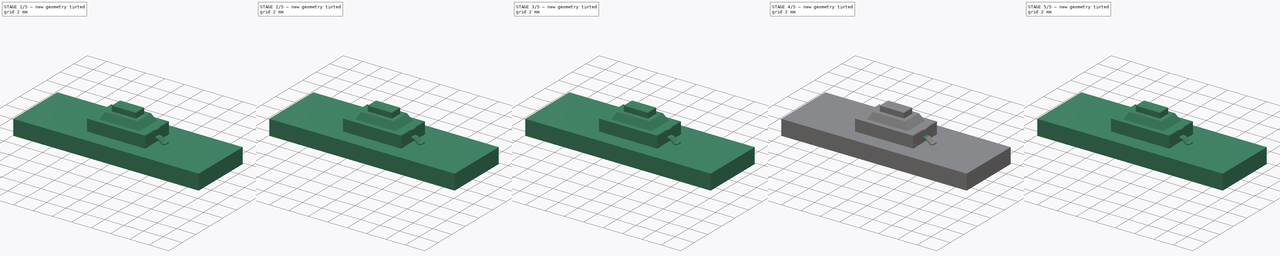
[diagram: build sequence overview — one tinted view per stage of 5, left to right]
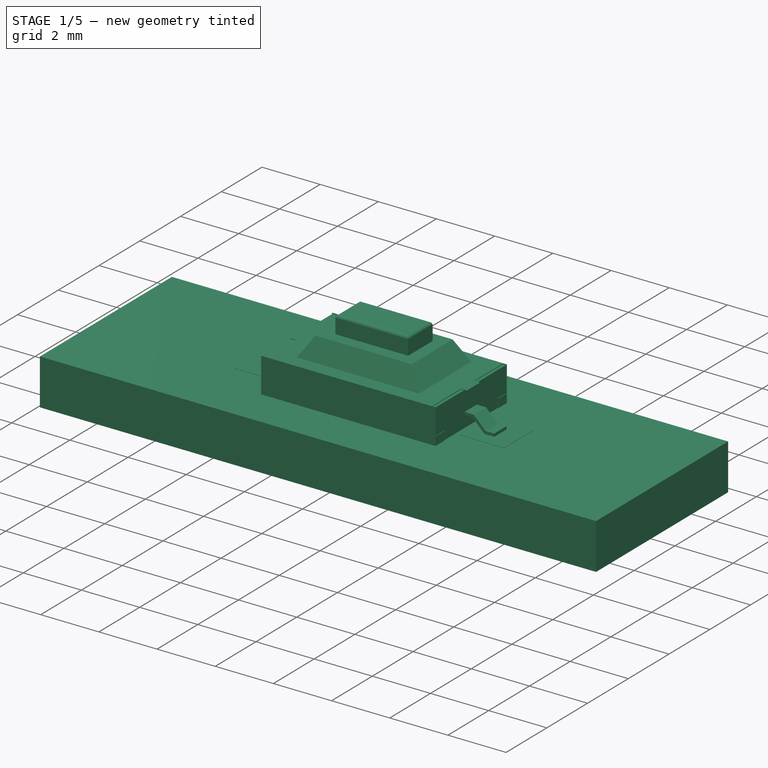
[diagram: stage 1 of 5 — iso view after this stage's code; geometry added in this stage tinted green]
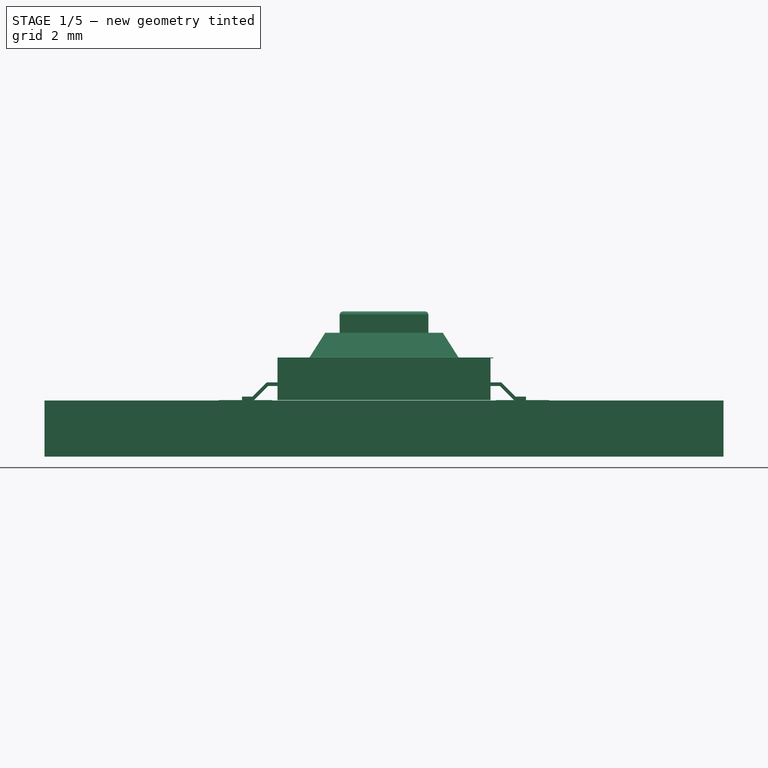
[diagram: stage 1 of 5 — front view after this stage's code; geometry added in this stage tinted green]
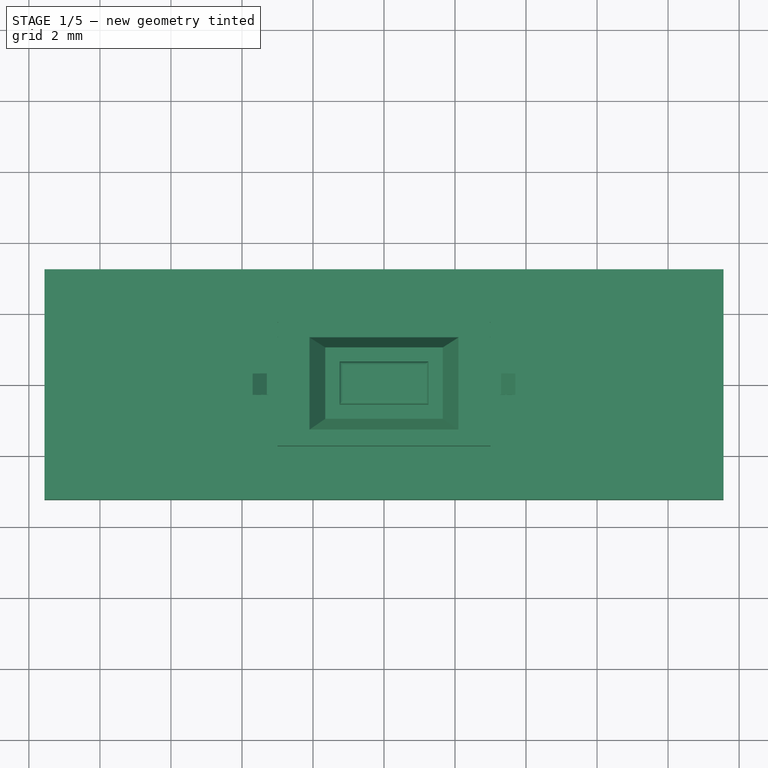
[diagram: stage 1 of 5 — top view after this stage's code; geometry added in this stage tinted green]
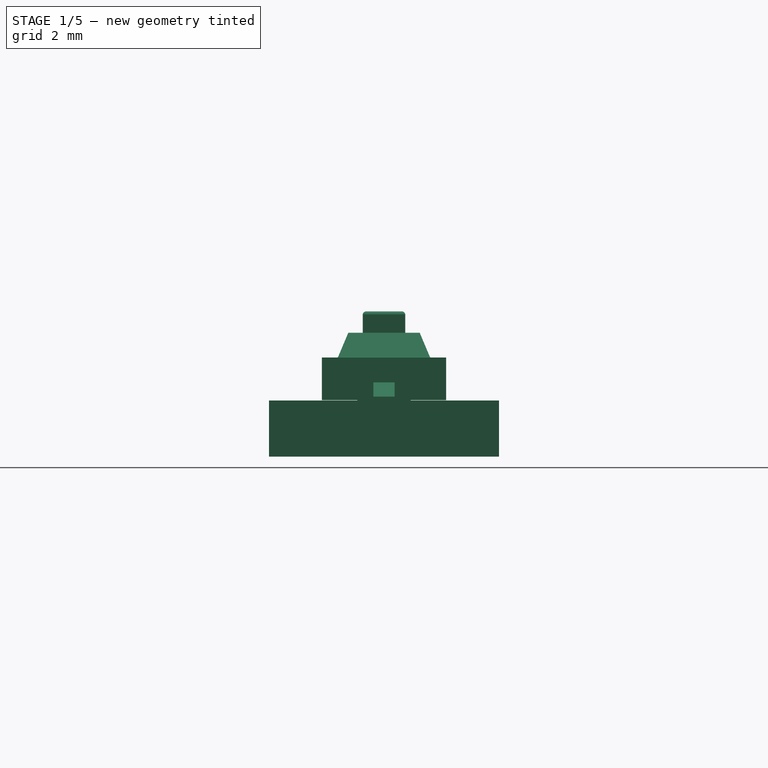
[diagram: stage 1 of 5 — right view after this stage's code; geometry added in this stage tinted green]
FCSTD DOCUMENT  (FreeCAD 0.18R13652 (Git))
Label: SW_SPST_CK_RS282G05A3
License: CreativeCommons Attribution-ShareAlike
LicenseURL: http://creativecommons.org/licenses/by-sa/4.0/
objects: Sketcher::SketchObject×9, PartDesign::Pad×7, Part::Feature×7, App::DocumentObjectGroup×6, Part::FeaturePython×5, Part::Part2DObjectPython×4, Part::MultiFuse×3, PartDesign::Fillet×3, PartDesign::Pocket×2, Part::Fillet×1, PartDesign::Mirrored×1, Part::Wedge×1, Part::Thickness×1
note: 53 computed .brp shape members not serialized (recipe doc carries the construction recipe); baked Part::Feature solids carry a one-line shape summary decoded from their .brp

FEATURE [Part::FeaturePython] FCrtYd_lines  label="FCrtYd"  # a2plus imported part (geometry in sourceFile) (typed FeaturePython)
  fixedPosition = true
FEATURE [Part::FeaturePython] FFab_lines  label="FFab"  # a2plus imported part (geometry in sourceFile) (typed FeaturePython)
  fixedPosition = true
FEATURE [Part::FeaturePython] Filk_lines  label="FrontSilk"  # a2plus imported part (geometry in sourceFile) (typed FeaturePython)
  fixedPosition = true
FEATURE [Part::FeaturePython] TopPads  # a2plus imported part (geometry in sourceFile) (typed FeaturePython)
  fixedPosition = true
FEATURE [Part::FeaturePython] newPCB  label="Pcb"  # a2plus imported part (geometry in sourceFile) (typed FeaturePython)
  fixedPosition = true
FEATURE [App::DocumentObjectGroup] Buttons_Switches_SMD_SW_SPST_RS_282G05A3_SM_fp
  Group = -> [FCrtYd_lines,FFab_lines,Filk_lines,TopPads,newPCB]
FEATURE [Part::Feature] Fillet006  label="PushButton_001"
  shape: bbox 2.5 x 1.2 x 1.32 mm, 10 faces (baked)
FEATURE [Part::Feature] Pocket002  label="Relleno001_001"
  shape: bbox 5.96 x 3.46 x 1.18 mm, 26 faces (baked)
FEATURE [Part::Feature] Fusion_solid  label="Fussion (Solid)"
  shape: bbox 6.078 x 3.502 x 1.902 mm, 53 faces (baked)
FEATURE [App::DocumentObjectGroup] Grupo001  label="carcaza"
  Group = -> [Pad001,Grupo002,Fusion,Fusion_solid]
FEATURE [App::DocumentObjectGroup] Grupo  label="make"
  Group = -> [Grupo001,Grupo003,Grupo004,Fillet,Fillet005,Pocket]
FEATURE [PartDesign::Fillet] Fillet005002  label="Carcaza"
  Base = -> Fusion_solid [Edge29,Edge30,Edge28,Edge31]
  Radius = 0.03
FEATURE [Part::Feature] Mirrored001  label="PIN_x2_001"
  Placement = pos=(0,0,0) rot=(1,0,0;1.5708rad)
  shape: bbox 8 x 0.6 x 0.5 mm, 14 faces (baked)
FEATURE [Part::MultiFuse] Fusion002  label="SW_SPST_CK_RS282G05A3_"
  Refine = true
  Shapes = -> [Fillet005002,Fillet006,Pocket002,Mirrored001]
FEATURE [Part::Feature] Fusion002001  label="SW_SPST_CK_RS282G05A3"
  shape: bbox 8.002 x 3.502 x 2.502 mm, 109 faces (baked)
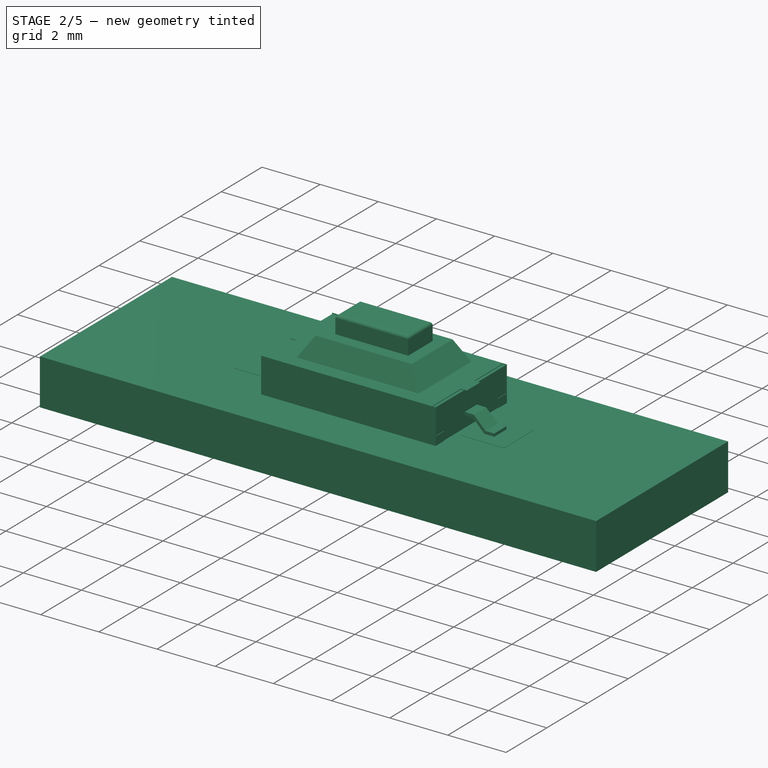
[diagram: stage 2 of 5 — iso view after this stage's code; geometry added in this stage tinted green]
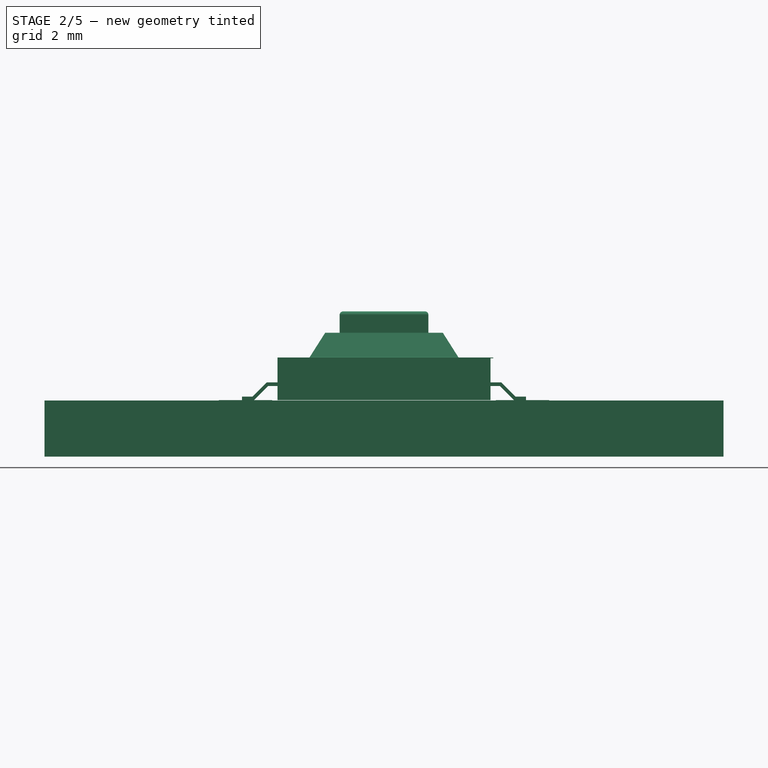
[diagram: stage 2 of 5 — front view after this stage's code; geometry added in this stage tinted green]
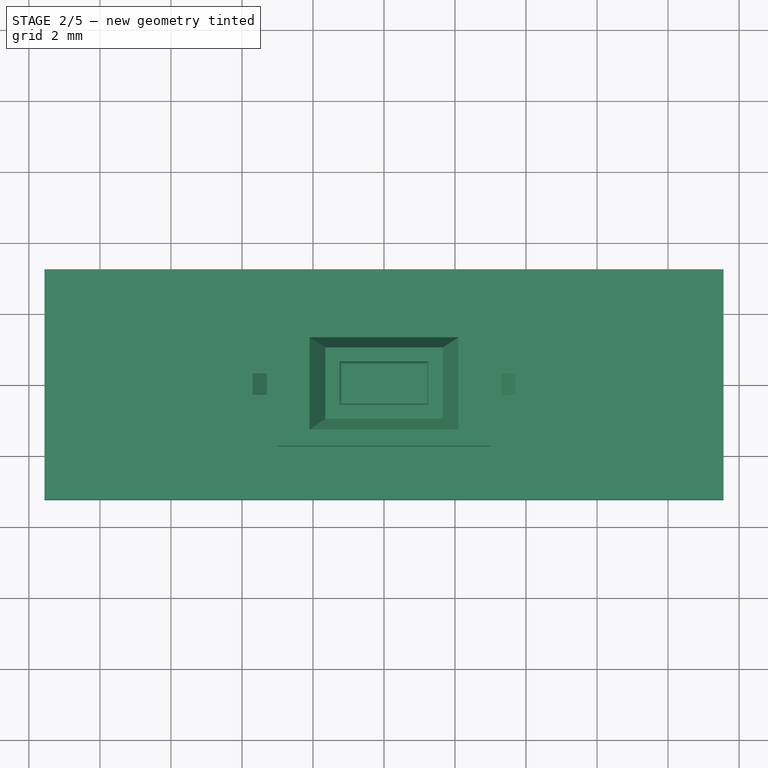
[diagram: stage 2 of 5 — top view after this stage's code; geometry added in this stage tinted green]
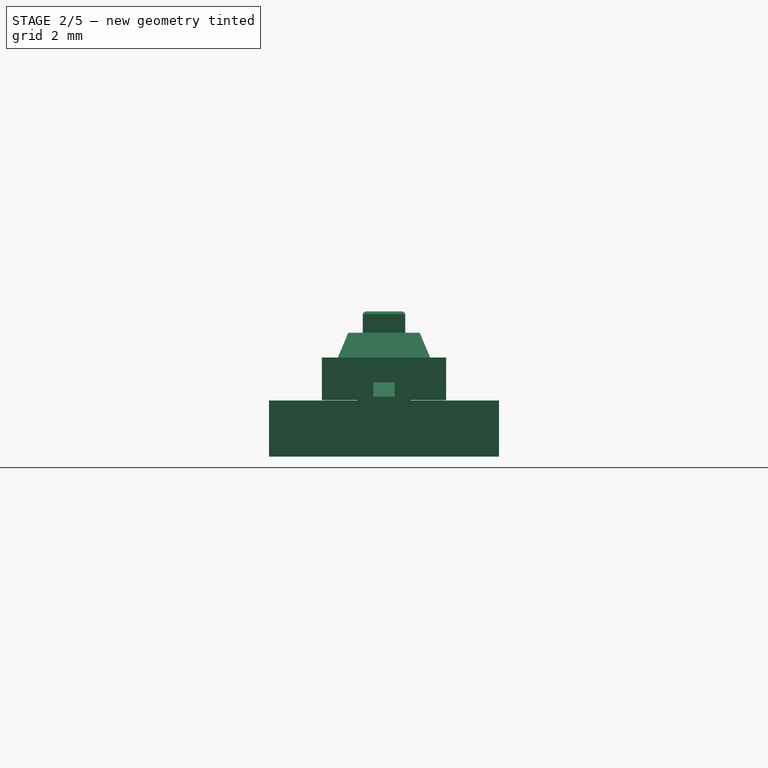
[diagram: stage 2 of 5 — right view after this stage's code; geometry added in this stage tinted green]
FEATURE [Sketcher::SketchObject] Sketch  label="1.Sketch"
  MapMode = 5
  sketch-geometry (10):
    g0: LineSegment StartX=-3 StartY=1.75 StartZ=0 EndX=3 EndY=1.75 EndZ=0
    g1: LineSegment [constr] StartX=3 StartY=1.75 StartZ=0 EndX=3 EndY=-1.75 EndZ=0
    g2: LineSegment StartX=3 StartY=-1.75 StartZ=0 EndX=-3 EndY=-1.75 EndZ=0
    g3: LineSegment [constr] StartX=-3 StartY=-1.75 StartZ=0 EndX=-3 EndY=1.75 EndZ=0
    g4: LineSegment StartX=-3 StartY=1.75 StartZ=0 EndX=-3 EndY=1.73 EndZ=0
    g5: LineSegment StartX=-3 StartY=1.73 StartZ=0 EndX=3 EndY=1.73 EndZ=0
    g6: LineSegment StartX=3 StartY=1.73 StartZ=0 EndX=3 EndY=1.75 EndZ=0
    g7: LineSegment StartX=-3 StartY=-1.75 StartZ=0 EndX=-3 EndY=-1.73 EndZ=0
    g8: LineSegment StartX=-3 StartY=-1.73 StartZ=0 EndX=3 EndY=-1.73 EndZ=0
    g9: LineSegment StartX=3 StartY=-1.73 StartZ=0 EndX=3 EndY=-1.75 EndZ=0
  constraints (27):
    c: Coincident(g0,g1)
    c: Coincident(g1,g2)
    c: Coincident(g2,g3)
    c: Coincident(g3,g0)
    c: Horizontal(g0)
    c: Horizontal(g2)
    c: Vertical(g1)
    c: Vertical(g3)
    c: Symmetric(g0,g1,g-1)
    c: DistanceX(g2,g2) = 6
    c: DistanceY(g1,g1) = 3.5
    c: Coincident(g0,g4)
    c: PointOnObject(g4,g3)
    c: Coincident(g4,g5)
    c: PointOnObject(g5,g1)
    c: Horizontal(g5)
    c: Coincident(g5,g6)
    c: Coincident(g6,g0)
    c: DistanceY(g4,g4) = 0.02
    c: Coincident(g2,g7)
    c: PointOnObject(g7,g3)
    c: Coincident(g7,g8)
    c: PointOnObject(g8,g1)
    c: Horizontal(g8)
    c: Coincident(g8,g9)
    c: Coincident(g9,g1)
    c: Equal(g4,g7)
FEATURE [PartDesign::Pad] Pad001  label="1.Pad001"
  Length = 1.2
  Length2 = 100
  Profile = -> Sketch
  Refine = true
  Type = 0
FEATURE [Part::Part2DObjectPython] DWire  label="5.DWire"  # Draft 2D object (typed FeaturePython)
  ChamferSize = 0
  Closed = true
  End = (2.1,-1.3,1.2)
  FilletRadius = 0
  Length = 9.27074
  MakeFace = true
  MapMode = 5
  Points = (4) [(-2.1,-1.3,1.2),(-1.655,-1.005,1.9),(1.655,-1.005,1.9),(2.1,-1.3,1.2)]
  Start = (-2.1,-1.3,1.2)
  Subdivisions = 0
FEATURE [Part::Part2DObjectPython] DWire001  label="5.DWire001"  # Draft 2D object (typed FeaturePython)
  ChamferSize = 0
  Closed = true
  End = (-2.1,0.0772879,1.37815)
  FilletRadius = 0
  Length = 6.37074
  MakeFace = true
  MapMode = 5
  Placement = pos=(0,-1.53338,0.646211) rot=(0,0.833172,0.553014;3.14159rad)
  Points = (4) [(2.1,-1.3,1.2),(1.655,-1.005,1.9),(1.655,1.005,1.9),(2.1,1.3,1.2)]
  Start = (-2.1,-0.932425,-1.01778)
  Subdivisions = 0
  Support = -> [DWire]
FEATURE [Part::Part2DObjectPython] DWire002  label="5.DWire002"  # Draft 2D object (typed FeaturePython)
  ChamferSize = 0
  Closed = true
  End = (-2.1,1.3,1.2)
  FilletRadius = 0
  Length = 9.27074
  MakeFace = true
  MapMode = 5
  Points = (4) [(2.1,1.3,1.2),(1.655,1.005,1.9),(-1.655,1.005,1.9),(-2.1,1.3,1.2)]
  Start = (2.1,1.3,1.2)
  Subdivisions = 0
FEATURE [Part::Part2DObjectPython] DWire003  label="5.DWire003"  # Draft 2D object (typed FeaturePython)
  ChamferSize = 0
  Closed = true
  End = (-2.1,-1.3,1.2)
  FilletRadius = 0
  Length = 6.37074
  MakeFace = true
  MapMode = 5
  Points = (4) [(-2.1,1.3,1.2),(-1.655,1.005,1.9),(-1.655,-1.005,1.9),(-2.1,-1.3,1.2)]
  Start = (-2.1,1.3,1.2)
  Subdivisions = 0
FEATURE [Part::Feature] Shell  label="5.Shell"
  shape: bbox 4.2 x 2.6 x 0.7 mm, 4 faces, 0 solids (baked)
FEATURE [Part::Feature] Solid  label="5.Solid"
  shape: bbox 4.2 x 2.6 x 0.7 mm, 4 faces (baked)
FEATURE [Part::Wedge] Wedge  label="5.Cuña"
  AttacherType = Attacher::AttachEngine3D
  Placement = pos=(-2.1,1.3,1.2) rot=(1,0,0;1.5708rad)
  X2max = 3.755
  X2min = 0.445
  Xmax = 4.2
  Xmin = 0
  Ymax = 0.7
  Ymin = 0
  Z2max = 2.305
  Z2min = 0.295
  Zmax = 2.6
  Zmin = 0
FEATURE [Part::Thickness] Thickness  label="5.Thickness"
  Faces = -> Wedge [Face3]
  Intersection = false
  Join = 2
  Mode = 0
  SelfIntersection = false
  Value = -0.02
FEATURE [App::DocumentObjectGroup] Grupo002  label="5.pad"
  Group = -> [DWire,DWire001,DWire002,DWire003,Shell,Solid,Pad004,Thickness]
FEATURE [Sketcher::SketchObject] Sketch010  label="5.Sketch010"
  MapMode = 5
  Placement = pos=(0,0,1.9) rot=(0,0,1;0rad)
  Support = -> [Thickness]
  sketch-geometry (4):
    g0: LineSegment StartX=-1.255 StartY=0.605 StartZ=0 EndX=1.255 EndY=0.605 EndZ=0
    g1: LineSegment StartX=1.255 StartY=0.605 StartZ=0 EndX=1.255 EndY=-0.605 EndZ=0
    g2: LineSegment StartX=1.255 StartY=-0.605 StartZ=0 EndX=-1.255 EndY=-0.605 EndZ=0
    g3: LineSegment StartX=-1.255 StartY=-0.605 StartZ=0 EndX=-1.255 EndY=0.605 EndZ=0
  constraints (11):
    c: Coincident(g0,g1)
    c: Coincident(g1,g2)
    c: Coincident(g2,g3)
    c: Coincident(g3,g0)
    c: Horizontal(g0)
    c: Horizontal(g2)
    c: Vertical(g1)
    c: Vertical(g3)
    c: Symmetric(g0,g1,g-1)
    c: DistanceX(g2,g2) = 2.51
    c: DistanceY(g3,g3) = 1.21
FEATURE [PartDesign::Pocket] Pocket001  label="5.Pocket001"
  Length = 5
  Length2 = 100
  Profile = -> Sketch010
  Refine = true
  Type = 2
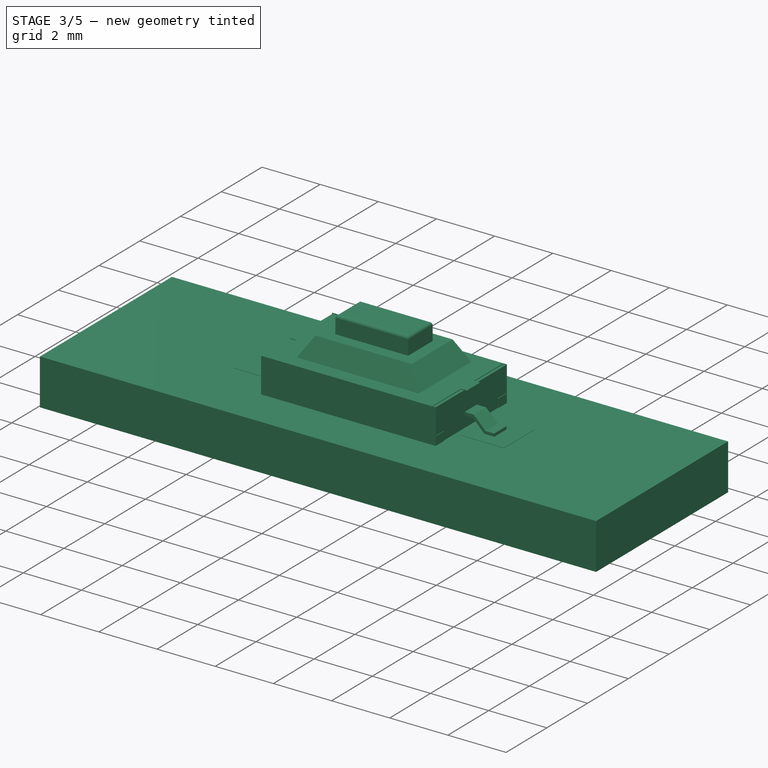
[diagram: stage 3 of 5 — iso view after this stage's code; geometry added in this stage tinted green]
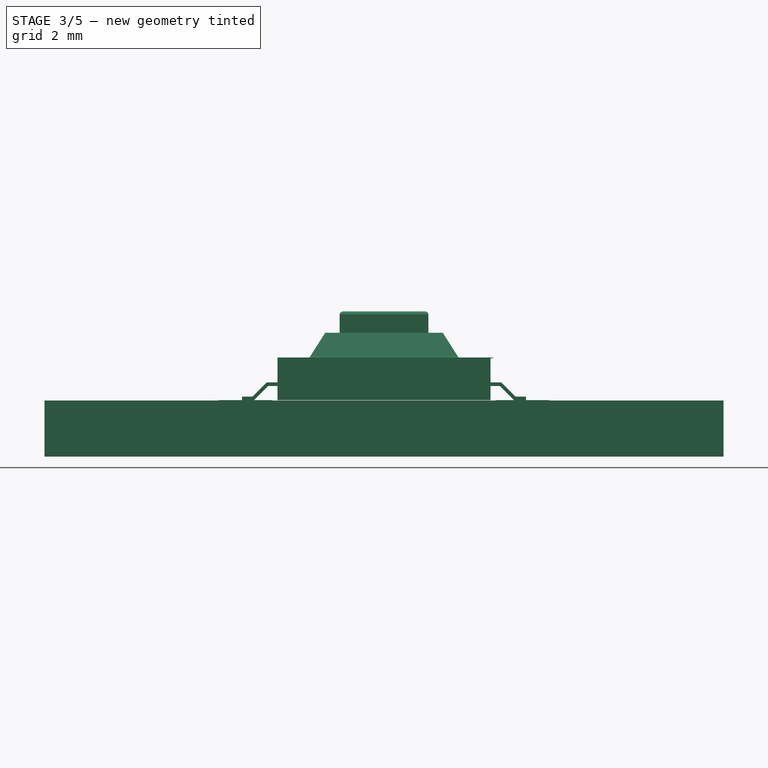
[diagram: stage 3 of 5 — front view after this stage's code; geometry added in this stage tinted green]
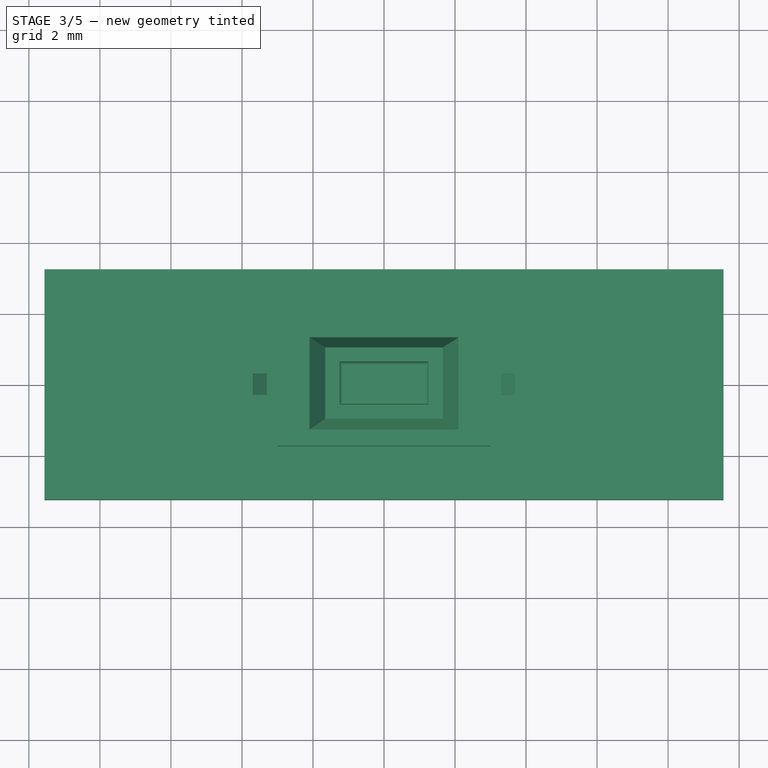
[diagram: stage 3 of 5 — top view after this stage's code; geometry added in this stage tinted green]
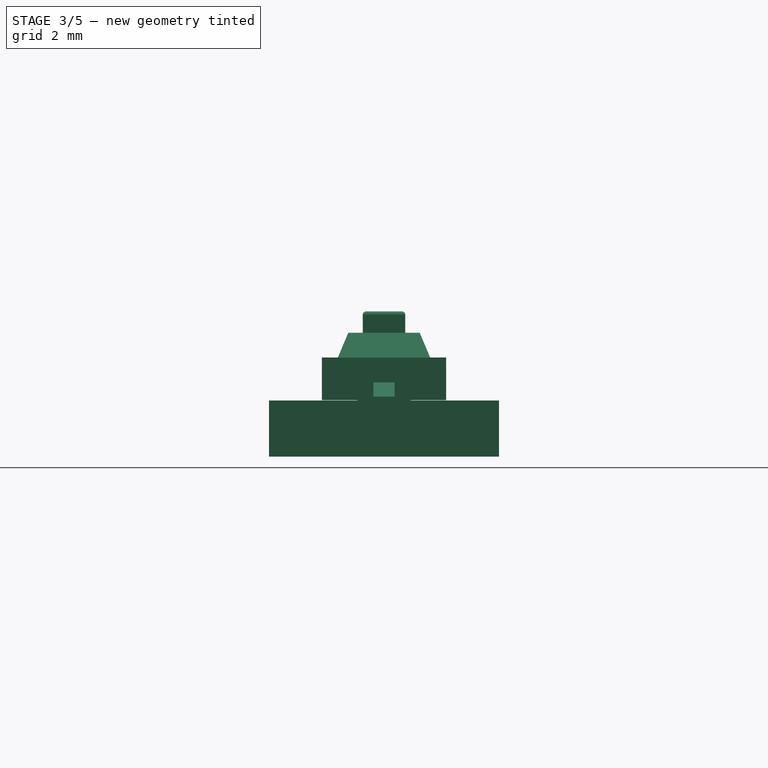
[diagram: stage 3 of 5 — right view after this stage's code; geometry added in this stage tinted green]
FEATURE [Sketcher::SketchObject] Sketch003  label="2.Sketch001"
  MapMode = 5
  sketch-geometry (26):
    g0: LineSegment [constr] StartX=-3 StartY=1.75 StartZ=0 EndX=3 EndY=1.75 EndZ=0
    g1: LineSegment [constr] StartX=3 StartY=1.75 StartZ=0 EndX=3 EndY=-1.75 EndZ=0
    g2: LineSegment [constr] StartX=3 StartY=-1.75 StartZ=0 EndX=-3 EndY=-1.75 EndZ=0
    g3: LineSegment [constr] StartX=-3 StartY=-1.75 StartZ=0 EndX=-3 EndY=1.75 EndZ=0
    g4: LineSegment [constr] StartX=-3 StartY=1.75 StartZ=0 EndX=-3 EndY=1.73 EndZ=0
    g5: LineSegment [constr] StartX=-3 StartY=1.73 StartZ=0 EndX=3 EndY=1.73 EndZ=0
    g6: LineSegment [constr] StartX=3 StartY=1.73 StartZ=0 EndX=3 EndY=1.75 EndZ=0
    g7: LineSegment [constr] StartX=-3 StartY=-1.75 StartZ=0 EndX=-3 EndY=-1.73 EndZ=0
    g8: LineSegment [constr] StartX=-3 StartY=-1.73 StartZ=0 EndX=3 EndY=-1.73 EndZ=0
    g9: LineSegment [constr] StartX=3 StartY=-1.73 StartZ=0 EndX=3 EndY=-1.75 EndZ=0
    g10: LineSegment StartX=-3 StartY=1.73 StartZ=0 EndX=-2.98 EndY=1.73 EndZ=0
    g11: LineSegment StartX=-2.98 StartY=1.73 StartZ=0 EndX=-2.98 EndY=1.33 EndZ=0
    g12: LineSegment StartX=-2.98 StartY=1.33 StartZ=0 EndX=-3 EndY=1.33 EndZ=0
    g13: LineSegment StartX=-3 StartY=1.33 StartZ=0 EndX=-3 EndY=1.73 EndZ=0
    g14: LineSegment StartX=3 StartY=1.73 StartZ=0 EndX=2.98 EndY=1.73 EndZ=0
    g15: LineSegment StartX=2.98 StartY=1.73 StartZ=0 EndX=2.98 EndY=1.33 EndZ=0
    g16: LineSegment StartX=2.98 StartY=1.33 StartZ=0 EndX=3 EndY=1.33 EndZ=0
    g17: LineSegment StartX=3 StartY=1.33 StartZ=0 EndX=3 EndY=1.73 EndZ=0
    g18: LineSegment StartX=3 StartY=-1.73 StartZ=0 EndX=2.98 EndY=-1.73 EndZ=0
    g19: LineSegment StartX=2.98 StartY=-1.73 StartZ=0 EndX=2.98 EndY=-1.33 EndZ=0
    g20: LineSegment StartX=2.98 StartY=-1.33 StartZ=0 EndX=3 EndY=-1.33 EndZ=0
    g21: LineSegment StartX=3 StartY=-1.33 StartZ=0 EndX=3 EndY=-1.73 EndZ=0
    g22: LineSegment StartX=-3 StartY=-1.73 StartZ=0 EndX=-2.98 EndY=-1.73 EndZ=0
    g23: LineSegment StartX=-2.98 StartY=-1.73 StartZ=0 EndX=-2.98 EndY=-1.33 EndZ=0
    g24: LineSegment StartX=-2.98 StartY=-1.33 StartZ=0 EndX=-3 EndY=-1.33 EndZ=0
    g25: LineSegment StartX=-3 StartY=-1.33 StartZ=0 EndX=-3 EndY=-1.73 EndZ=0
  constraints (71):
    c: Coincident(g0,g1)
    c: Coincident(g1,g2)
    c: Coincident(g2,g3)
    c: Coincident(g3,g0)
    c: Horizontal(g0)
    c: Horizontal(g2)
    c: Vertical(g1)
    c: Vertical(g3)
    c: Symmetric(g0,g1,g-1)
    c: DistanceX(g2,g2) = 6
    c: DistanceY(g1,g1) = 3.5
    c: Coincident(g0,g4)
    c: PointOnObject(g4,g3)
    c: Coincident(g4,g5)
    c: PointOnObject(g5,g1)
    c: Horizontal(g5)
    c: Coincident(g5,g6)
    c: Coincident(g6,g0)
    c: DistanceY(g4,g4) = 0.02
    c: Coincident(g2,g7)
    c: PointOnObject(g7,g3)
    c: Coincident(g7,g8)
    c: PointOnObject(g8,g1)
    c: Horizontal(g8)
    c: Coincident(g8,g9)
    c: Coincident(g9,g1)
    c: Equal(g4,g7)
    c: Coincident(g10,g11)
    c: Coincident(g11,g12)
    c: Coincident(g12,g13)
    c: Coincident(g13,g10)
    c: Horizontal(g10)
    c: Horizontal(g12)
    c: Vertical(g11)
    c: Vertical(g13)
    c: Coincident(g10,g4)
    c: Coincident(g14,g15)
    c: Coincident(g15,g16)
    c: Coincident(g16,g17)
    c: Coincident(g17,g14)
    c: Horizontal(g14)
    c: Horizontal(g16)
    c: Vertical(g15)
    c: Vertical(g17)
    c: Coincident(g14,g5)
    c: Coincident(g18,g19)
    c: Coincident(g19,g20)
    c: Coincident(g20,g21)
    c: Coincident(g21,g18)
    c: Horizontal(g18)
    c: Horizontal(g20)
    c: Vertical(g19)
    c: Vertical(g21)
    c: Coincident(g18,g8)
    c: Coincident(g22,g23)
    c: Coincident(g23,g24)
    c: Coincident(g24,g25)
    c: Coincident(g25,g22)
    c: Horizontal(g22)
    c: Horizontal(g24)
    c: Vertical(g23)
    c: Vertical(g25)
    c: Coincident(g22,g7)
    c: Equal(g24,g20)
    c: Equal(g20,g16)
    c: Equal(g16,g12)
    c: Equal(g11,g15)
    c: Equal(g15,g19)
    c: Equal(g19,g23)
    c: Equal(g4,g12)
    c: DistanceY(g11,g11) = 0.4
FEATURE [PartDesign::Pad] Pad002  label="2.Pad002"
  Length = 0.3
  Length2 = 100
  Profile = -> Sketch003
  Refine = true
  Type = 0
FEATURE [Sketcher::SketchObject] Sketch004
  ExternalGeometry = -> [Pad001]
  MapMode = 5
  Placement = pos=(0,0,1.2) rot=(0,0,1;0rad)
  Support = -> [Pad001]
  sketch-geometry (16):
    g0: LineSegment StartX=-2.8 StartY=1.75 StartZ=0 EndX=-2.8 EndY=0.325 EndZ=0
    g1: LineSegment StartX=-2.8 StartY=0.325 StartZ=0 EndX=-3 EndY=0.325 EndZ=0
    g2: LineSegment StartX=-3 StartY=0.325 StartZ=0 EndX=-3 EndY=-0.325 EndZ=0
    g3: LineSegment StartX=-3 StartY=-0.325 StartZ=0 EndX=-2.8 EndY=-0.325 EndZ=0
    g4: LineSegment StartX=-2.8 StartY=-0.325 StartZ=0 EndX=-2.8 EndY=-1.75 EndZ=0
    g5: LineSegment StartX=-2.8 StartY=-1.75 StartZ=0 EndX=2.87644 EndY=-1.75 EndZ=0
    g6: LineSegment StartX=2.87644 StartY=-1.75 StartZ=0 EndX=2.87644 EndY=-0.325 EndZ=0
    g7: LineSegment StartX=2.87644 StartY=-0.325 StartZ=0 EndX=3.07644 EndY=-0.325 EndZ=0
    g8: LineSegment StartX=3.07644 StartY=-0.325 StartZ=0 EndX=3.07644 EndY=0.325 EndZ=0
    g9: LineSegment StartX=3.07644 StartY=0.325 StartZ=0 EndX=2.87644 EndY=0.325 EndZ=0
    g10: LineSegment StartX=2.87644 StartY=0.325 StartZ=0 EndX=2.87644 EndY=1.75 EndZ=0
    g11: LineSegment StartX=2.87644 StartY=1.75 StartZ=0 EndX=-2.8 EndY=1.75 EndZ=0
    g12: LineSegment StartX=-2.095 StartY=1.295 StartZ=0 EndX=2.095 EndY=1.295 EndZ=0
    g13: LineSegment StartX=2.095 StartY=1.295 StartZ=0 EndX=2.095 EndY=-1.295 EndZ=0
    g14: LineSegment StartX=2.095 StartY=-1.295 StartZ=0 EndX=-2.095 EndY=-1.295 EndZ=0
    g15: LineSegment StartX=-2.095 StartY=-1.295 StartZ=0 EndX=-2.095 EndY=1.295 EndZ=0
  constraints (46):
    c: PointOnObject(g0,g-4)
    c: Vertical(g0)
    c: Coincident(g0,g1)
    c: Coincident(g1,g2)
    c: Vertical(g2)
    c: Coincident(g2,g3)
    c: Coincident(g3,g4)
    c: PointOnObject(g4,g-3)
    c: Vertical(g4)
    c: Coincident(g4,g5)
    c: PointOnObject(g5,g-3)
    c: Coincident(g5,g6)
    c: Vertical(g6)
    c: Coincident(g6,g7)
    c: Horizontal(g7)
    c: Coincident(g7,g8)
    c: Vertical(g8)
    c: Coincident(g8,g9)
    c: Coincident(g9,g10)
    c: PointOnObject(g10,g-4)
    c: Vertical(g10)
    c: Coincident(g10,g11)
    c: Coincident(g11,g0)
    c: Horizontal(g3)
    c: Horizontal(g1)
    c: Horizontal(g9)
    c: Symmetric(g1,g2,g-1)
    c: Equal(g2,g8)
    c: Symmetric(g7,g8,g-1)
    c: Equal(g1,g3)
    c: Equal(g3,g7)
    c: Equal(g7,g9)
    c: Coincident(g12,g13)
    c: Coincident(g13,g14)
    c: Coincident(g14,g15)
    c: Coincident(g15,g12)
    c: Horizontal(g12)
    c: Horizontal(g14)
    c: Vertical(g13)
    c: Vertical(g15)
    c: Symmetric(g12,g13,g-1)
    c: DistanceY(g13,g13) = 2.59
    c: DistanceX(g12,g12) = 4.19
    c: DistanceX(g1,g1) = 0.2
    c: DistanceX(g-4,g1) = 0
    c: DistanceY(g2,g2) = 0.65
FEATURE [PartDesign::Pad] Pad003  label="3.Pad003"
  Length = 0.02
  Length2 = 100
  Profile = -> Sketch004
  Refine = true
  Reversed = true
  Type = 0
FEATURE [Part::MultiFuse] Fusion001  label="Fusion_carcaza1"
  Refine = true
  Shapes = -> [Pad003,Pad002]
FEATURE [Sketcher::SketchObject] Sketch008  label="2.Sketch002"
  MapMode = 5
  sketch-geometry (30):
    g0: LineSegment [constr] StartX=-3 StartY=1.75 StartZ=0 EndX=3 EndY=1.75 EndZ=0
    g1: LineSegment [constr] StartX=3 StartY=1.75 StartZ=0 EndX=3 EndY=-1.75 EndZ=0
    g2: LineSegment [constr] StartX=3 StartY=-1.75 StartZ=0 EndX=-3 EndY=-1.75 EndZ=0
    g3: LineSegment [constr] StartX=-3 StartY=-1.75 StartZ=0 EndX=-3 EndY=1.75 EndZ=0
    g4: LineSegment [constr] StartX=-3 StartY=1.75 StartZ=0 EndX=-3 EndY=1.73 EndZ=0
    g5: LineSegment [constr] StartX=-3 StartY=1.73 StartZ=0 EndX=3 EndY=1.73 EndZ=0
    g6: LineSegment [constr] StartX=3 StartY=1.73 StartZ=0 EndX=3 EndY=1.75 EndZ=0
    g7: LineSegment [constr] StartX=-3 StartY=-1.75 StartZ=0 EndX=-3 EndY=-1.73 EndZ=0
    g8: LineSegment [constr] StartX=-3 StartY=-1.73 StartZ=0 EndX=3 EndY=-1.73 EndZ=0
    g9: LineSegment [constr] StartX=3 StartY=-1.73 StartZ=0 EndX=3 EndY=-1.75 EndZ=0
    g10: LineSegment [constr] StartX=-3 StartY=1.73 StartZ=0 EndX=-2.98 EndY=1.73 EndZ=0
    g11: LineSegment [constr] StartX=-2.98 StartY=1.73 StartZ=0 EndX=-2.98 EndY=1.33 EndZ=0
    g12: LineSegment [constr] StartX=-2.98 StartY=1.33 StartZ=0 EndX=-3 EndY=1.33 EndZ=0
    g13: LineSegment [constr] StartX=-3 StartY=1.33 StartZ=0 EndX=-3 EndY=1.73 EndZ=0
    g14: LineSegment [constr] StartX=3 StartY=1.73 StartZ=0 EndX=2.98 EndY=1.73 EndZ=0
    g15: LineSegment [constr] StartX=2.98 StartY=1.73 StartZ=0 EndX=2.98 EndY=1.33 EndZ=0
    g16: LineSegment [constr] StartX=2.98 StartY=1.33 StartZ=0 EndX=3 EndY=1.33 EndZ=0
    g17: LineSegment [constr] StartX=3 StartY=1.33 StartZ=0 EndX=3 EndY=1.73 EndZ=0
    g18: LineSegment [constr] StartX=3 StartY=-1.73 StartZ=0 EndX=2.98 EndY=-1.73 EndZ=0
    g19: LineSegment [constr] StartX=2.98 StartY=-1.73 StartZ=0 EndX=2.98 EndY=-1.33 EndZ=0
    g20: LineSegment [constr] StartX=2.98 StartY=-1.33 StartZ=0 EndX=3 EndY=-1.33 EndZ=0
    g21: LineSegment [constr] StartX=3 StartY=-1.33 StartZ=0 EndX=3 EndY=-1.73 EndZ=0
    g22: LineSegment [constr] StartX=-3 StartY=-1.73 StartZ=0 EndX=-2.98 EndY=-1.73 EndZ=0
    g23: LineSegment [constr] StartX=-2.98 StartY=-1.73 StartZ=0 EndX=-2.98 EndY=-1.33 EndZ=0
    g24: LineSegment [constr] StartX=-2.98 StartY=-1.33 StartZ=0 EndX=-3 EndY=-1.33 EndZ=0
    g25: LineSegment [constr] StartX=-3 StartY=-1.33 StartZ=0 EndX=-3 EndY=-1.73 EndZ=0
    g26: LineSegment StartX=-2.98 StartY=1.73 StartZ=0 EndX=2.98 EndY=1.73 EndZ=0
    g27: LineSegment StartX=2.98 StartY=1.73 StartZ=0 EndX=2.98 EndY=-1.73 EndZ=0
    g28: LineSegment StartX=2.98 StartY=-1.73 StartZ=0 EndX=-2.98 EndY=-1.73 EndZ=0
    g29: LineSegment StartX=-2.98 StartY=-1.73 StartZ=0 EndX=-2.98 EndY=1.73 EndZ=0
  constraints (81):
    c: Coincident(g0,g1)
    c: Coincident(g1,g2)
    c: Coincident(g2,g3)
    c: Coincident(g3,g0)
    c: Horizontal(g0)
    c: Horizontal(g2)
    c: Vertical(g1)
    c: Vertical(g3)
    c: Symmetric(g0,g1,g-1)
    c: DistanceX(g2,g2) = 6
    c: DistanceY(g1,g1) = 3.5
    c: Coincident(g0,g4)
    c: PointOnObject(g4,g3)
    c: Coincident(g4,g5)
    c: PointOnObject(g5,g1)
    c: Horizontal(g5)
    c: Coincident(g5,g6)
    c: Coincident(g6,g0)
    c: DistanceY(g4,g4) = 0.02
    c: Coincident(g2,g7)
    c: PointOnObject(g7,g3)
    c: Coincident(g7,g8)
    c: PointOnObject(g8,g1)
    c: Horizontal(g8)
    c: Coincident(g8,g9)
    c: Coincident(g9,g1)
    c: Equal(g4,g7)
    c: Coincident(g10,g11)
    c: Coincident(g11,g12)
    c: Coincident(g12,g13)
    c: Coincident(g13,g10)
    c: Horizontal(g10)
    c: Horizontal(g12)
    c: Vertical(g11)
    c: Vertical(g13)
    c: Coincident(g10,g4)
    c: Coincident(g14,g15)
    c: Coincident(g15,g16)
    c: Coincident(g16,g17)
    c: Coincident(g17,g14)
    c: Horizontal(g14)
    c: Horizontal(g16)
    c: Vertical(g15)
    c: Vertical(g17)
    c: Coincident(g14,g5)
    c: Coincident(g18,g19)
    c: Coincident(g19,g20)
    c: Coincident(g20,g21)
    c: Coincident(g21,g18)
    c: Horizontal(g18)
    c: Horizontal(g20)
    c: Vertical(g19)
    c: Vertical(g21)
    c: Coincident(g18,g8)
    c: Coincident(g22,g23)
    c: Coincident(g23,g24)
    c: Coincident(g24,g25)
    c: Coincident(g25,g22)
    c: Horizontal(g22)
    c: Horizontal(g24)
    c: Vertical(g23)
    c: Vertical(g25)
    c: Coincident(g22,g7)
    c: Equal(g24,g20)
    c: Equal(g20,g16)
    c: Equal(g16,g12)
    c: Equal(g11,g15)
    c: Equal(g15,g19)
    c: Equal(g19,g23)
    c: Equal(g4,g12)
    c: DistanceY(g11,g11) = 0.4
    c: Coincident(g26,g27)
    c: Coincident(g27,g28)
    c: Coincident(g28,g29)
    c: Coincident(g29,g26)
    c: Horizontal(g26)
    c: Horizontal(g28)
    c: Vertical(g27)
    c: Vertical(g29)
    c: Coincident(g26,g10)
    c: Coincident(g27,g18)
FEATURE [PartDesign::Pad] Pad  label="1.Pad"
  Length = 1.18
  Length2 = 100
  Profile = -> Sketch008
  Refine = true
  Type = 0
FEATURE [Part::MultiFuse] Fusion  label="Fussion"
  Refine = true
  Shapes = -> [Fusion001,Pocket001]
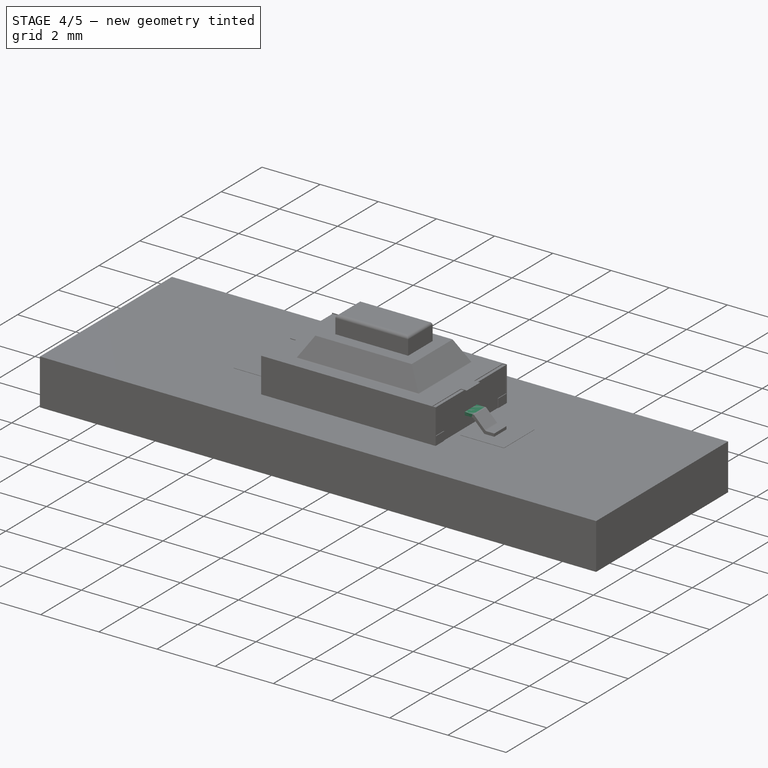
[diagram: stage 4 of 5 — iso view after this stage's code; geometry added in this stage tinted green]
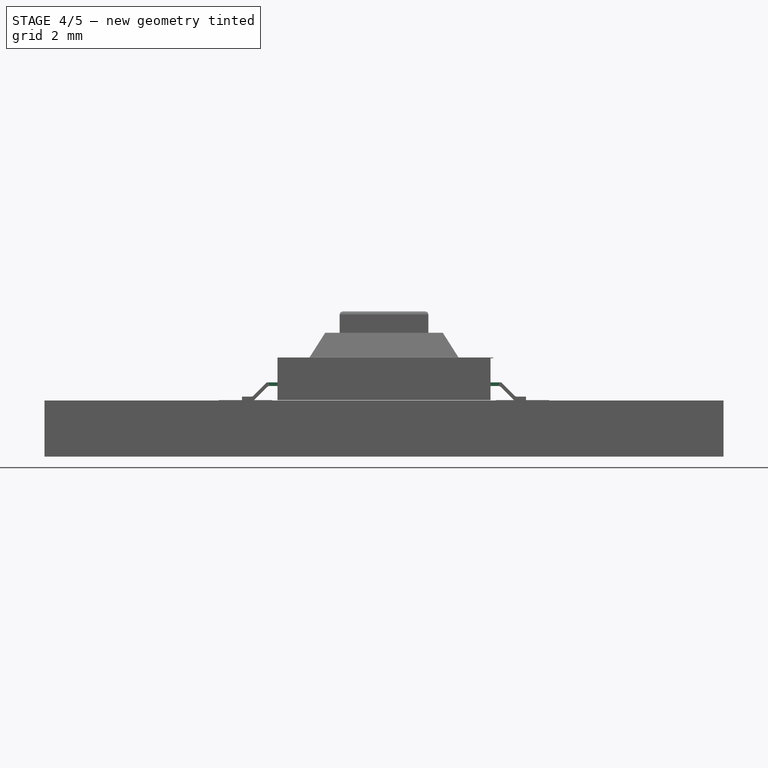
[diagram: stage 4 of 5 — front view after this stage's code; geometry added in this stage tinted green]
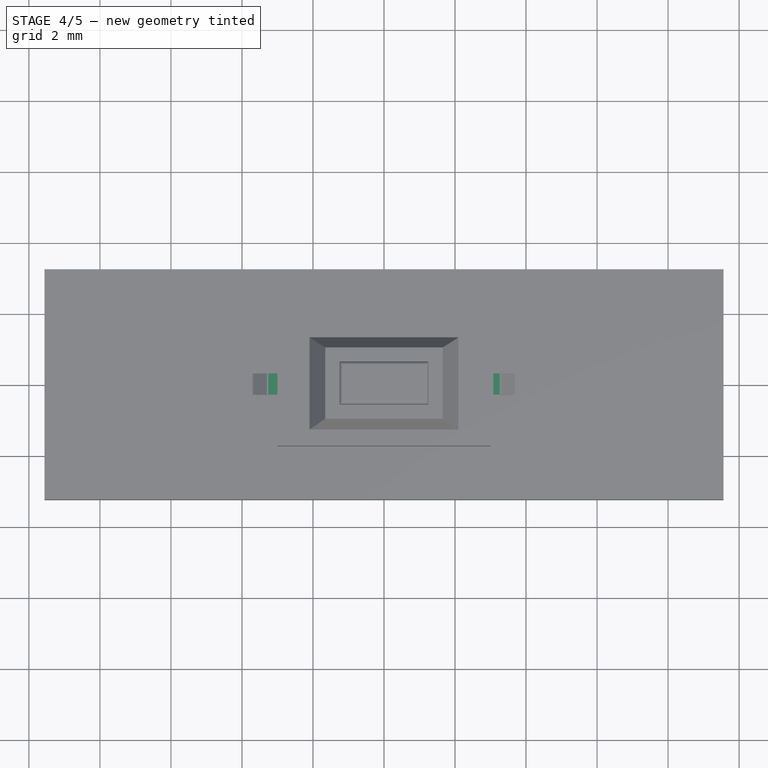
[diagram: stage 4 of 5 — top view after this stage's code; geometry added in this stage tinted green]
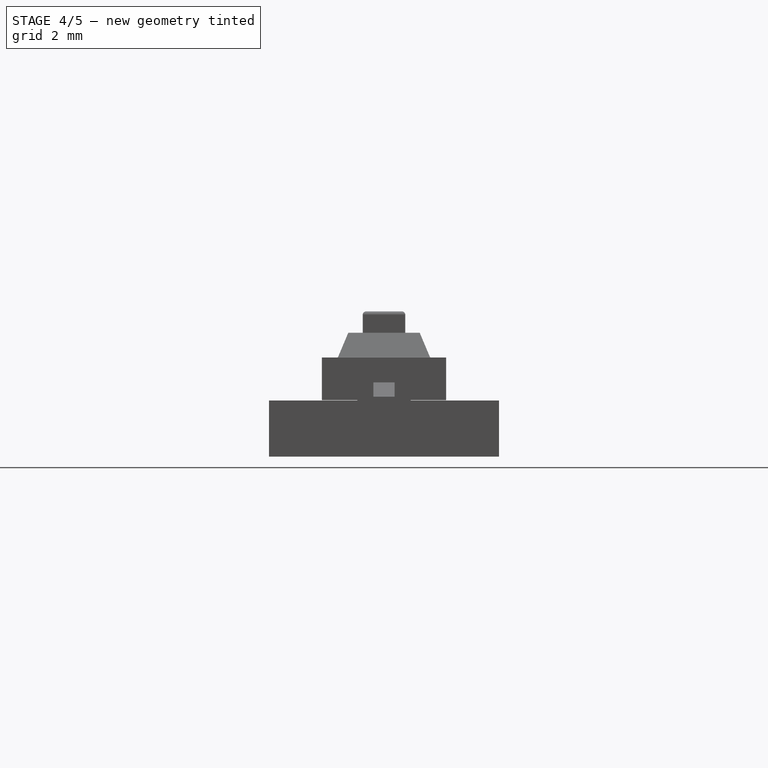
[diagram: stage 4 of 5 — right view after this stage's code; geometry added in this stage tinted green]
FEATURE [Sketcher::SketchObject] Sketch007  label="1.Sketch007"
  MapMode = 5
  Placement = pos=(0,0,0) rot=(1,0,0;1.5708rad)
  sketch-geometry (10):
    g0: LineSegment StartX=-4 StartY=0 StartZ=0 EndX=-4 EndY=0.1 EndZ=0
    g1: LineSegment StartX=-4 StartY=0.1 StartZ=0 EndX=-3.7 EndY=0.1 EndZ=0
    g2: LineSegment StartX=-3.7 StartY=0.1 StartZ=0 EndX=-3.3 EndY=0.5 EndZ=0
    g3: LineSegment StartX=-4 StartY=0 StartZ=0 EndX=-3.65858 EndY=0 EndZ=0
    g4: LineSegment StartX=-3.65858 StartY=0 StartZ=0 EndX=-3.25858 EndY=0.4 EndZ=0
    g5: LineSegment StartX=-3.25858 StartY=0.4 StartZ=0 EndX=0 EndY=0.4 EndZ=0
    g6: LineSegment StartX=0 StartY=0.4 StartZ=0 EndX=0 EndY=0.5 EndZ=0
    g7: LineSegment StartX=0 StartY=0.5 StartZ=0 EndX=-3.3 EndY=0.5 EndZ=0
    g8: LineSegment [constr] StartX=-3.25858 StartY=0.4 StartZ=0 EndX=-3.25858 EndY=0.5 EndZ=0
    g9: LineSegment [constr] StartX=-3.36213 StartY=0.29645 StartZ=0 EndX=-3.43284 EndY=0.367161 EndZ=0
  constraints (30):
    c: PointOnObject(g0,g-1)
    c: Vertical(g0)
    c: Coincident(g0,g1)
    c: Horizontal(g1)
    c: Coincident(g1,g2)
    c: Coincident(g0,g3)
    c: PointOnObject(g3,g-1)
    c: Coincident(g3,g4)
    c: Coincident(g4,g5)
    c: Horizontal(g5)
    c: Coincident(g5,g6)
    c: Vertical(g6)
    c: Coincident(g6,g7)
    c: Coincident(g7,g2)
    c: Horizontal(g7)
    c: Parallel(g2,g4)
    c: DistanceY(g-1,g5) = 0.4
    c: DistanceX(g0,g-1) = 4
    c: PointOnObject(g5,g-2)
    c: DistanceY(g0,g0) = 0.1
    c: Coincident(g8,g4)
    c: PointOnObject(g8,g7)
    c: Vertical(g8)
    c: Equal(g8,g0)
    c: PointOnObject(g9,g4)
    c: PointOnObject(g9,g2)
    c: Perpendicular(g9,g4)
    c: Equal(g9,g8)
    c: Angle(g4,g-1) = 2.35619
    c: DistanceX(g1,g1) = 0.3
FEATURE [PartDesign::Pad] Pad006  label="2.Pad006"
  Length = 0.6
  Length2 = 100
  Midplane = true
  Placement = pos=(0,0,0) rot=(1,0,0;1.5708rad)
  Profile = -> Sketch007
  Refine = true
  Type = 0
FEATURE [PartDesign::Mirrored] Mirrored  label="PIN_x003"
  MirrorPlane = -> Sketch007 [V_Axis]
  Originals = -> [Pad006]
  Placement = pos=(0,0,0) rot=(1,0,0;1.5708rad)
  Refine = true
FEATURE [App::DocumentObjectGroup] Grupo003  label="PIN_"
  Group = -> [Fillet004,Pad006,Mirrored]
FEATURE [PartDesign::Fillet] Fillet005  label="PIN_x2_"
  Base = -> Mirrored [Edge8,Edge14,Edge5,Edge11,Edge31,Edge27,Edge33,Edge29]
  Placement = pos=(0,0,0) rot=(1,0,0;1.5708rad)
  Radius = 0.1
FEATURE [App::DocumentObjectGroup] Grupo004  label="Relleno"
  Group = -> [Pad]
FEATURE [Sketcher::SketchObject] Sketch009
  MapMode = 5
  Placement = pos=(0,0,0) rot=(1,0,0;3.14159rad)
  Support = -> [Pad]
  sketch-geometry (16):
    g0: LineSegment StartX=-2.53904 StartY=1.5 StartZ=0 EndX=-1.13904 EndY=1.5 EndZ=0
    g1: LineSegment StartX=-1.13904 StartY=1.5 StartZ=0 EndX=-1.13904 EndY=-1.5 EndZ=0
    g2: LineSegment StartX=-1.13904 StartY=-1.5 StartZ=0 EndX=-2.53904 EndY=-1.5 EndZ=0
    g3: LineSegment StartX=-2.53904 StartY=-1.5 StartZ=0 EndX=-2.53904 EndY=1.5 EndZ=0
    g4: LineSegment StartX=1.13904 StartY=1.5 StartZ=0 EndX=2.53904 EndY=1.5 EndZ=0
    g5: LineSegment StartX=2.53904 StartY=1.5 StartZ=0 EndX=2.53904 EndY=-1.5 EndZ=0
    g6: LineSegment StartX=2.53904 StartY=-1.5 StartZ=0 EndX=1.13904 EndY=-1.5 EndZ=0
    g7: LineSegment StartX=1.13904 StartY=-1.5 StartZ=0 EndX=1.13904 EndY=1.5 EndZ=0
    g8: LineSegment StartX=-0.590902 StartY=1.27844 StartZ=0 EndX=0.590902 EndY=1.27844 EndZ=0
    g9: LineSegment StartX=0.590902 StartY=1.27844 StartZ=0 EndX=0.590902 EndY=0.957529 EndZ=0
    g10: LineSegment StartX=0.590902 StartY=0.957529 StartZ=0 EndX=-0.590902 EndY=0.957529 EndZ=0
    g11: LineSegment StartX=-0.590902 StartY=0.957529 StartZ=0 EndX=-0.590902 EndY=1.27844 EndZ=0
    g12: LineSegment StartX=-0.590902 StartY=0.645177 StartZ=0 EndX=0.590902 EndY=0.645177 EndZ=0
    g13: LineSegment StartX=0.590902 StartY=0.645177 StartZ=0 EndX=0.590902 EndY=0.324267 EndZ=0
    g14: LineSegment StartX=0.590902 StartY=0.324267 StartZ=0 EndX=-0.590902 EndY=0.324267 EndZ=0
    g15: LineSegment StartX=-0.590902 StartY=0.324267 StartZ=0 EndX=-0.590902 EndY=0.645177 EndZ=0
  constraints (42):
    c: Coincident(g0,g1)
    c: Coincident(g1,g2)
    c: Coincident(g2,g3)
    c: Coincident(g3,g0)
    c: Horizontal(g0)
    c: Horizontal(g2)
    c: Vertical(g1)
    c: Vertical(g3)
    c: Coincident(g4,g5)
    c: Coincident(g5,g6)
    c: Coincident(g6,g7)
    c: Coincident(g7,g4)
    c: Horizontal(g4)
    c: Horizontal(g6)
    c: Vertical(g5)
    c: Vertical(g7)
    c: Equal(g2,g6)
    c: Equal(g1,g7)
    c: Symmetric(g1,g6,g-2)
    c: Symmetric(g6,g4,g-1)
    c: Coincident(g8,g9)
    c: Coincident(g9,g10)
    c: Coincident(g10,g11)
    c: Coincident(g11,g8)
    c: Horizontal(g8)
    c: Horizontal(g10)
    c: Vertical(g9)
    c: Vertical(g11)
    c: Coincident(g12,g13)
    c: Coincident(g13,g14)
    c: Coincident(g14,g15)
    c: Coincident(g15,g12)
    c: Horizontal(g12)
    c: Horizontal(g14)
    c: Vertical(g13)
    c: Vertical(g15)
    c: Equal(g13,g9)
    c: Equal(g12,g10)
    c: DistanceX(g0,g0) = 1.4
    c: Symmetric(g14,g13,g-2)
    c: Symmetric(g8,g8,g-2)
    c: DistanceY(g3,g3) = 3
FEATURE [PartDesign::Pocket] Pocket  label="Relleno001_"
  Length = 0.02
  Length2 = 100
  Profile = -> Sketch009
  Refine = true
  Type = 0
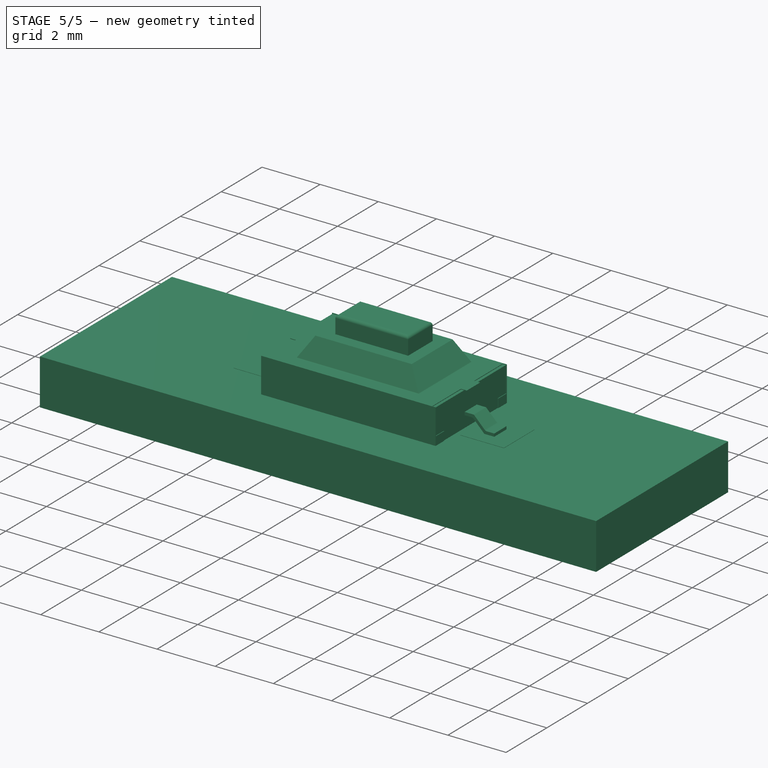
[diagram: stage 5 of 5 — iso view after this stage's code; geometry added in this stage tinted green]
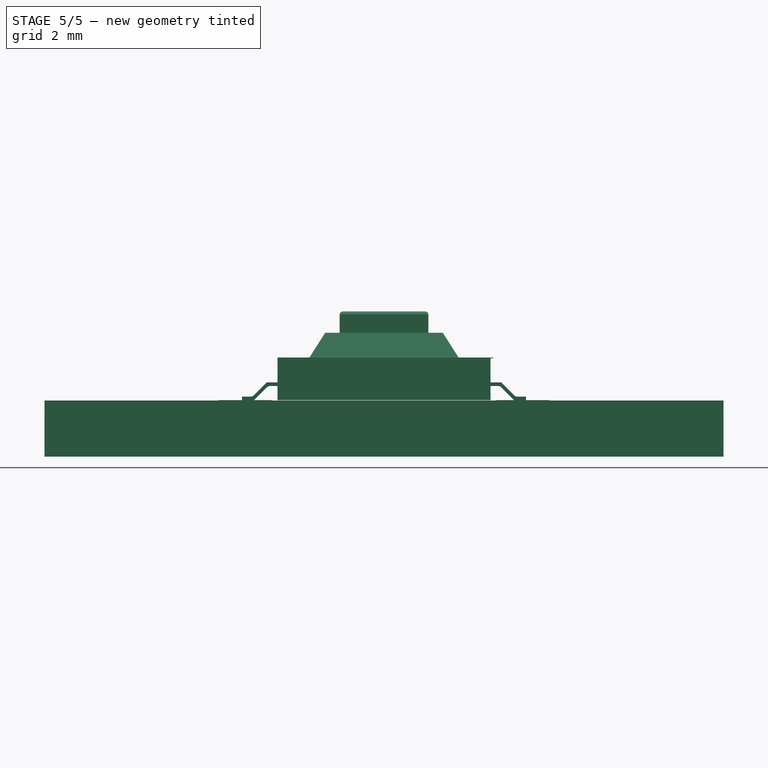
[diagram: stage 5 of 5 — front view after this stage's code; geometry added in this stage tinted green]
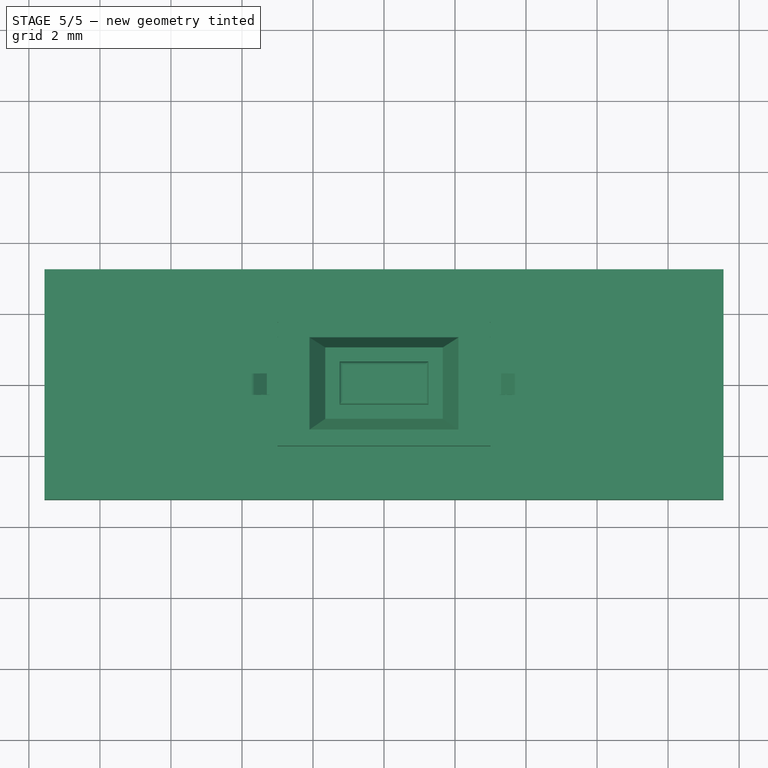
[diagram: stage 5 of 5 — top view after this stage's code; geometry added in this stage tinted green]
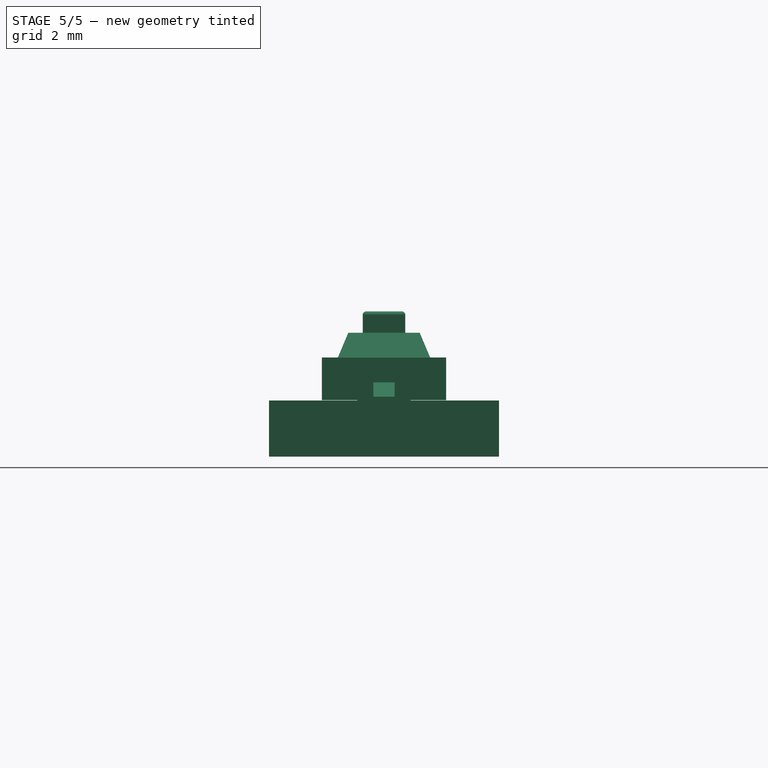
[diagram: stage 5 of 5 — right view after this stage's code; geometry added in this stage tinted green]
FEATURE [Sketcher::SketchObject] Sketch005  label="4.Sketch005"
  MapMode = 5
  Placement = pos=(0,0,1.9) rot=(0,0,1;0rad)
  sketch-geometry (12):
    g0: LineSegment StartX=-1.255 StartY=0.605 StartZ=0 EndX=1.255 EndY=0.605 EndZ=0
    g1: LineSegment StartX=1.255 StartY=0.605 StartZ=0 EndX=1.255 EndY=-0.605 EndZ=0
    g2: LineSegment StartX=1.255 StartY=-0.605 StartZ=0 EndX=-1.255 EndY=-0.605 EndZ=0
    g3: LineSegment StartX=-1.255 StartY=-0.605 StartZ=0 EndX=-1.255 EndY=0.605 EndZ=0
    g4: LineSegment StartX=-1.655 StartY=1.005 StartZ=0 EndX=1.655 EndY=1.005 EndZ=0
    g5: LineSegment StartX=1.655 StartY=1.005 StartZ=0 EndX=1.655 EndY=-1.005 EndZ=0
    g6: LineSegment StartX=1.655 StartY=-1.005 StartZ=0 EndX=-1.655 EndY=-1.005 EndZ=0
    g7: LineSegment StartX=-1.655 StartY=-1.005 StartZ=0 EndX=-1.655 EndY=1.005 EndZ=0
    g8: LineSegment [constr] StartX=-1.655 StartY=1.005 StartZ=0 EndX=-1.255 EndY=1.005 EndZ=0
    g9: LineSegment [constr] StartX=-1.255 StartY=1.005 StartZ=0 EndX=-1.255 EndY=0.605 EndZ=0
    g10: LineSegment [constr] StartX=-1.255 StartY=0.605 StartZ=0 EndX=-1.655 EndY=0.605 EndZ=0
    g11: LineSegment [constr] StartX=-1.655 StartY=0.605 StartZ=0 EndX=-1.655 EndY=1.005 EndZ=0
  constraints (32):
    c: Coincident(g0,g1)
    c: Coincident(g1,g2)
    c: Coincident(g2,g3)
    c: Coincident(g3,g0)
    c: Horizontal(g0)
    c: Horizontal(g2)
    c: Vertical(g1)
    c: Vertical(g3)
    c: Symmetric(g0,g1,g-1)
    c: DistanceX(g0,g0) = 2.51
    c: DistanceY(g1,g1) = 1.21
    c: Coincident(g4,g5)
    c: Coincident(g5,g6)
    c: Coincident(g6,g7)
    c: Coincident(g7,g4)
    c: Horizontal(g4)
    c: Horizontal(g6)
    c: Vertical(g5)
    c: Vertical(g7)
    c: Symmetric(g4,g5,g-1)
    c: Coincident(g8,g9)
    c: Coincident(g9,g10)
    c: Coincident(g10,g11)
    c: Coincident(g11,g8)
    c: Horizontal(g8)
    c: Horizontal(g10)
    c: Vertical(g9)
    c: Vertical(g11)
    c: Coincident(g8,g4)
    c: Coincident(g9,g0)
    c: Equal(g10,g9)
    c: DistanceX(g10,g10) = 0.4
FEATURE [PartDesign::Pad] Pad004  label="4.Pad004"
  Length = 0.02
  Length2 = 100
  Placement = pos=(0,0,1.9) rot=(0,0,1;0rad)
  Profile = -> Sketch005
  Refine = true
  Reversed = true
  Type = 0
FEATURE [Sketcher::SketchObject] Sketch006
  MapMode = 5
  Placement = pos=(0,0,2.5) rot=(0,0,1;0rad)
  sketch-geometry (4):
    g0: LineSegment StartX=-1.25 StartY=0.6 StartZ=0 EndX=1.25 EndY=0.6 EndZ=0
    g1: LineSegment StartX=1.25 StartY=0.6 StartZ=0 EndX=1.25 EndY=-0.6 EndZ=0
    g2: LineSegment StartX=1.25 StartY=-0.6 StartZ=0 EndX=-1.25 EndY=-0.6 EndZ=0
    g3: LineSegment StartX=-1.25 StartY=-0.6 StartZ=0 EndX=-1.25 EndY=0.6 EndZ=0
  constraints (11):
    c: Coincident(g0,g1)
    c: Coincident(g1,g2)
    c: Coincident(g2,g3)
    c: Coincident(g3,g0)
    c: Horizontal(g0)
    c: Horizontal(g2)
    c: Vertical(g1)
    c: Vertical(g3)
    c: Symmetric(g0,g1,g-1)
    c: DistanceY(g1,g1) = 1.2
    c: DistanceX(g2,g2) = 2.5
FEATURE [PartDesign::Pad] Pad005  label="1.Pad005"
  Length = 1.32
  Length2 = 100
  Placement = pos=(0,0,2.5) rot=(0,0,1;0rad)
  Profile = -> Sketch006
  Refine = true
  Reversed = true
  Type = 0
FEATURE [Part::Fillet] Fillet  label="PushButton_"
  Base = -> Pad005
  Edges = 4 edges r=0.1: [Edge3,Edge6,Edge9,Edge11]
FEATURE [PartDesign::Fillet] Fillet004
  Base = -> Pad006 [Edge5,Edge8,Edge17]
  Placement = pos=(0,0,0) rot=(1,0,0;1.5708rad)
  Radius = 0.15
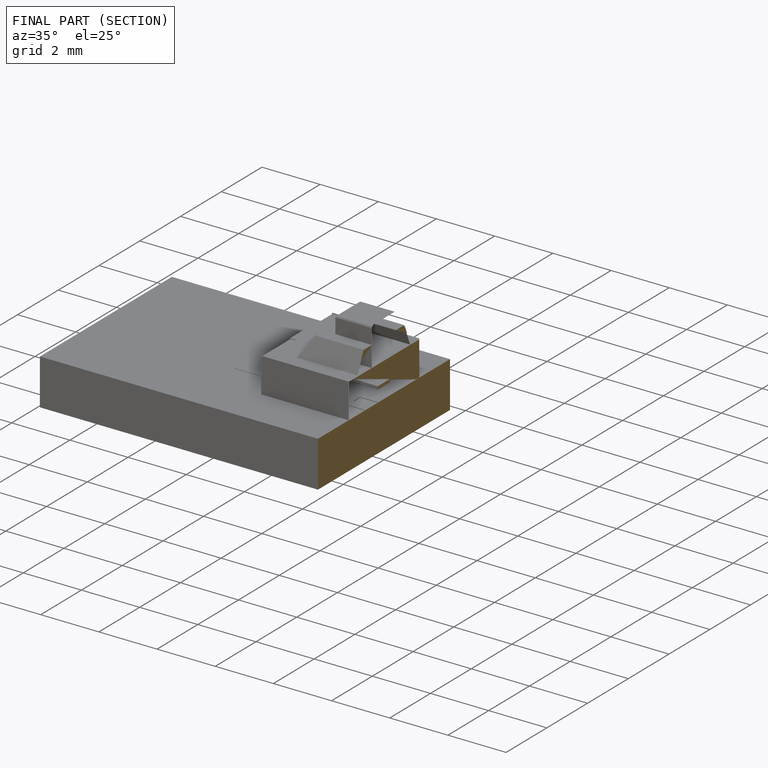
[diagram: finished part — half-section view (interior)]
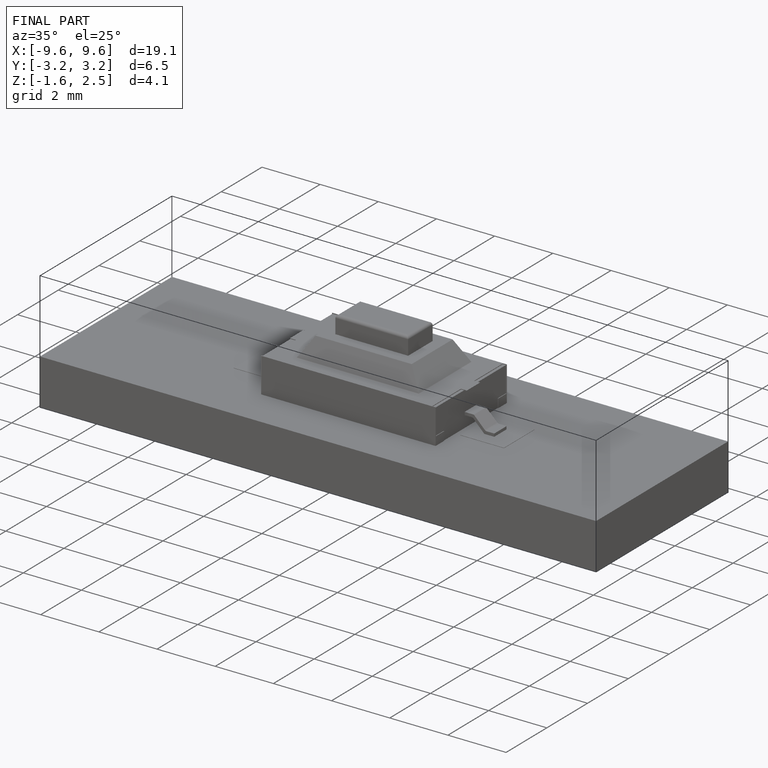
[diagram: finished part — iso view with bounding-box wireframe]
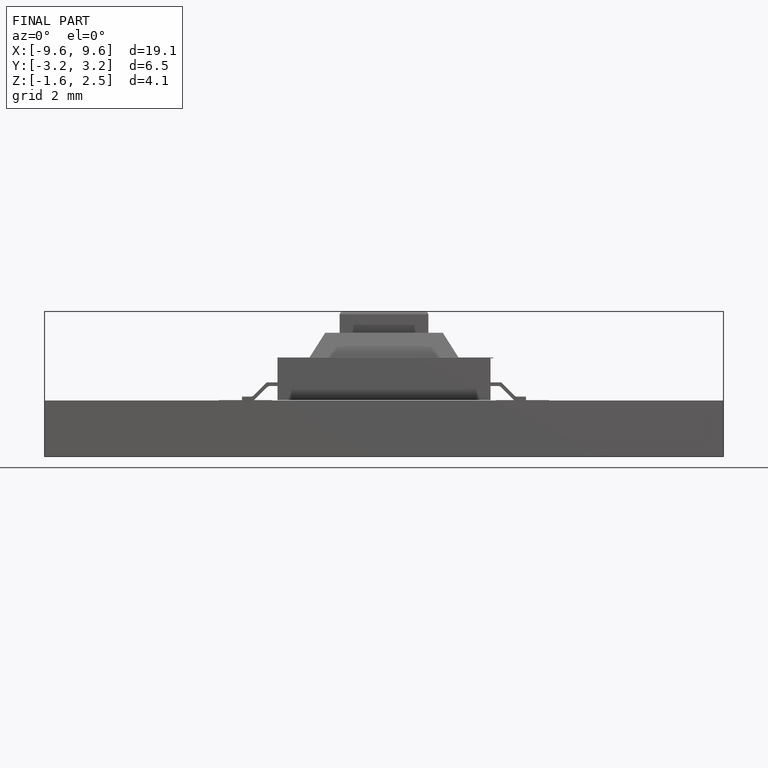
[diagram: finished part — front view with bounding-box wireframe]
